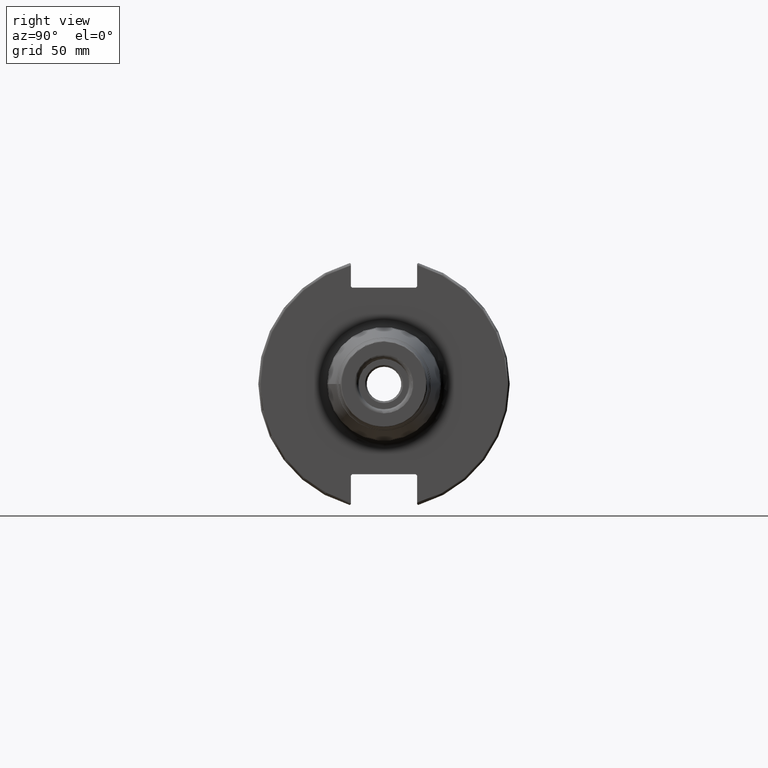
[diagram: clean part render]
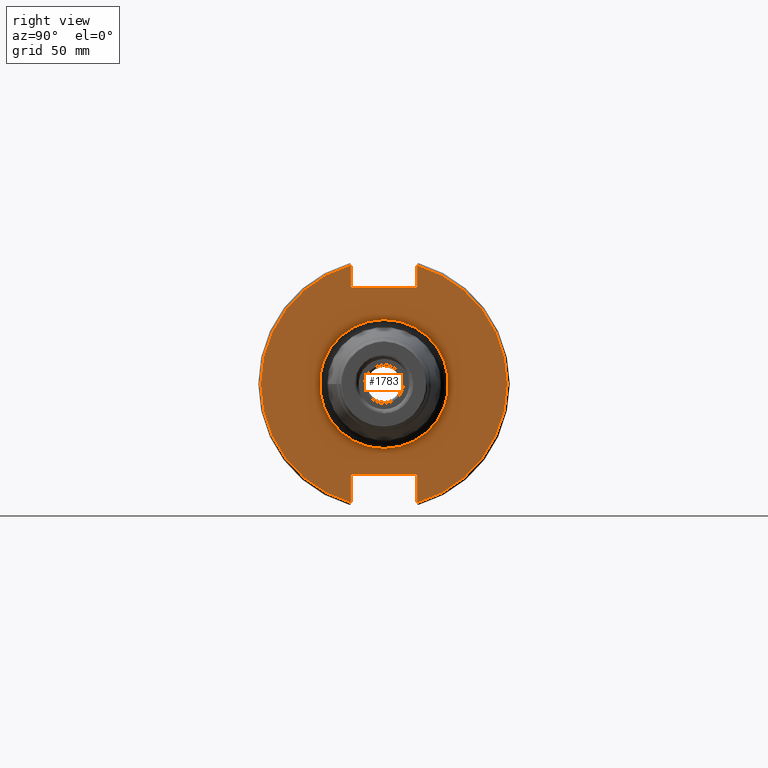
[diagram: same view with one face highlighted and labeled with its STEP entity id]
A machine part, right view. The second image highlights one B-rep face of the part: STEP entity #1783.
In plain terms, the highlighted planar face has unit normal (1, 0, 0).
Its self-contained STEP definition (entity closure, byte-faithful):
#34=PLANE('',#1927);
#113=FACE_BOUND('',#286,.T.);
#177=FACE_OUTER_BOUND('',#285,.T.);
#285=EDGE_LOOP('',(#1234,#1235,#1236,#1237,#1238,#1239,#1240,#1241,#1242,
#1243,#1244,#1245));
#286=EDGE_LOOP('',(#1246));
#404=LINE('',#2863,#506);
#405=LINE('',#2865,#507);
#406=LINE('',#2867,#508);
#407=LINE('',#2869,#509);
#408=LINE('',#2871,#510);
#409=LINE('',#2875,#511);
#410=LINE('',#2877,#512);
#411=LINE('',#2879,#513);
#412=LINE('',#2881,#514);
#413=LINE('',#2882,#515);
#506=VECTOR('',#2192,10.);
#507=VECTOR('',#2193,10.);
#508=VECTOR('',#2194,10.);
#509=VECTOR('',#2195,10.);
#510=VECTOR('',#2196,10.);
#511=VECTOR('',#2199,10.);
#512=VECTOR('',#2200,10.);
#513=VECTOR('',#2201,10.);
#514=VECTOR('',#2202,10.);
#515=VECTOR('',#2203,10.);
#615=CIRCLE('',#1923,25.25);
#618=CIRCLE('',#1928,48.2125);
#619=CIRCLE('',#1929,48.2125);
#741=VERTEX_POINT('',#2850);
#743=VERTEX_POINT('',#2859);
#744=VERTEX_POINT('',#2860);
#745=VERTEX_POINT('',#2862);
#746=VERTEX_POINT('',#2864);
#747=VERTEX_POINT('',#2866);
#748=VERTEX_POINT('',#2868);
#749=VERTEX_POINT('',#2870);
#750=VERTEX_POINT('',#2872);
#751=VERTEX_POINT('',#2874);
#752=VERTEX_POINT('',#2876);
#753=VERTEX_POINT('',#2878);
#754=VERTEX_POINT('',#2880);
#933=EDGE_CURVE('',#741,#741,#615,.T.);
#937=EDGE_CURVE('',#743,#744,#618,.T.);
#938=EDGE_CURVE('',#743,#745,#404,.T.);
#939=EDGE_CURVE('',#746,#745,#405,.T.);
#940=EDGE_CURVE('',#746,#747,#406,.T.);
#941=EDGE_CURVE('',#748,#747,#407,.T.);
#942=EDGE_CURVE('',#748,#749,#408,.T.);
#943=EDGE_CURVE('',#750,#749,#619,.T.);
#944=EDGE_CURVE('',#750,#751,#409,.T.);
#945=EDGE_CURVE('',#752,#751,#410,.T.);
#946=EDGE_CURVE('',#752,#753,#411,.T.);
#947=EDGE_CURVE('',#754,#753,#412,.T.);
#948=EDGE_CURVE('',#754,#744,#413,.T.);
#1234=ORIENTED_EDGE('',*,*,#937,.F.);
#1235=ORIENTED_EDGE('',*,*,#938,.T.);
#1236=ORIENTED_EDGE('',*,*,#939,.F.);
#1237=ORIENTED_EDGE('',*,*,#940,.T.);
#1238=ORIENTED_EDGE('',*,*,#941,.F.);
#1239=ORIENTED_EDGE('',*,*,#942,.T.);
#1240=ORIENTED_EDGE('',*,*,#943,.F.);
#1241=ORIENTED_EDGE('',*,*,#944,.T.);
#1242=ORIENTED_EDGE('',*,*,#945,.F.);
#1243=ORIENTED_EDGE('',*,*,#946,.T.);
#1244=ORIENTED_EDGE('',*,*,#947,.F.);
#1245=ORIENTED_EDGE('',*,*,#948,.T.);
#1246=ORIENTED_EDGE('',*,*,#933,.F.);
#1783=ADVANCED_FACE('',(#177,#113),#34,.T.);
#1923=AXIS2_PLACEMENT_3D('',#2852,#2179,#2180);
#1927=AXIS2_PLACEMENT_3D('',#2858,#2188,#2189);
#1928=AXIS2_PLACEMENT_3D('',#2861,#2190,#2191);
#1929=AXIS2_PLACEMENT_3D('',#2873,#2197,#2198);
#2179=DIRECTION('center_axis',(1.,0.,0.));
#2180=DIRECTION('ref_axis',(0.,-1.,-1.22464679914735E-16));
#2188=DIRECTION('center_axis',(1.,0.,0.));
#2189=DIRECTION('ref_axis',(0.,0.,-1.));
#2190=DIRECTION('center_axis',(-1.,0.,0.));
#2191=DIRECTION('ref_axis',(0.,1.,-6.12323399573677E-17));
#2192=DIRECTION('',(0.,0.,-1.));
#2193=DIRECTION('',(0.,0.707106781186549,0.707106781186546));
#2194=DIRECTION('',(0.,-1.,0.));
#2195=DIRECTION('',(0.,0.707106781186549,-0.707106781186546));
#2196=DIRECTION('',(0.,0.,1.));
#2197=DIRECTION('center_axis',(-1.,0.,0.));
#2198=DIRECTION('ref_axis',(0.,-1.,1.60812264967664E-16));
#2199=DIRECTION('',(0.,0.,1.));
#2200=DIRECTION('',(0.,-0.707106781186549,-0.707106781186546));
#2201=DIRECTION('',(0.,1.,0.));
#2202=DIRECTION('',(0.,-0.707106781186549,0.707106781186546));
#2203=DIRECTION('',(0.,0.,-1.));
#2850=CARTESIAN_POINT('',(19.05,-3.09223316784707E-15,-25.25));
#2852=CARTESIAN_POINT('Origin',(19.05,0.,0.));
#2858=CARTESIAN_POINT('Origin',(19.05,0.,0.));
#2859=CARTESIAN_POINT('',(19.05,12.95,46.4407434937254));
#2860=CARTESIAN_POINT('',(19.05,12.95,-46.4407434937254));
#2861=CARTESIAN_POINT('Origin',(19.05,0.,0.));
#2862=CARTESIAN_POINT('',(19.05,12.95,38.219));
#2863=CARTESIAN_POINT('',(19.05,12.95,18.8595));
#2864=CARTESIAN_POINT('',(19.05,12.45,37.719));
#2865=CARTESIAN_POINT('',(19.05,0.0327499999999836,25.30175));
#2866=CARTESIAN_POINT('',(19.05,-12.45,37.719));
#2867=CARTESIAN_POINT('',(19.05,0.,37.719));
#2868=CARTESIAN_POINT('',(19.05,-12.95,38.219));
#2869=CARTESIAN_POINT('',(19.05,-0.0327499999999817,25.30175));
#2870=CARTESIAN_POINT('',(19.05,-12.95,46.4407434937254));
#2871=CARTESIAN_POINT('',(19.05,-12.95,18.8595));
#2872=CARTESIAN_POINT('',(19.05,-12.95,-46.4407434937254));
#2873=CARTESIAN_POINT('Origin',(19.05,0.,0.));
#2874=CARTESIAN_POINT('',(19.05,-12.95,-35.806));
#2875=CARTESIAN_POINT('',(19.05,-12.95,-17.653));
#2876=CARTESIAN_POINT('',(19.05,-12.45,-35.306));
#2877=CARTESIAN_POINT('',(19.05,-0.635999999999989,-23.492));
#2878=CARTESIAN_POINT('',(19.05,12.45,-35.306));
#2879=CARTESIAN_POINT('',(19.05,-3.33066907387547E-15,-35.306));
#2880=CARTESIAN_POINT('',(19.05,12.95,-35.806));
#2881=CARTESIAN_POINT('',(19.05,0.635999999999982,-23.492));
#2882=CARTESIAN_POINT('',(19.05,12.95,-17.653));